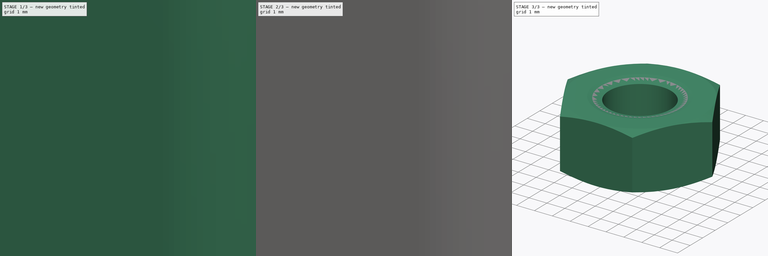
[diagram: build sequence overview — one tinted view per stage of 3, left to right]
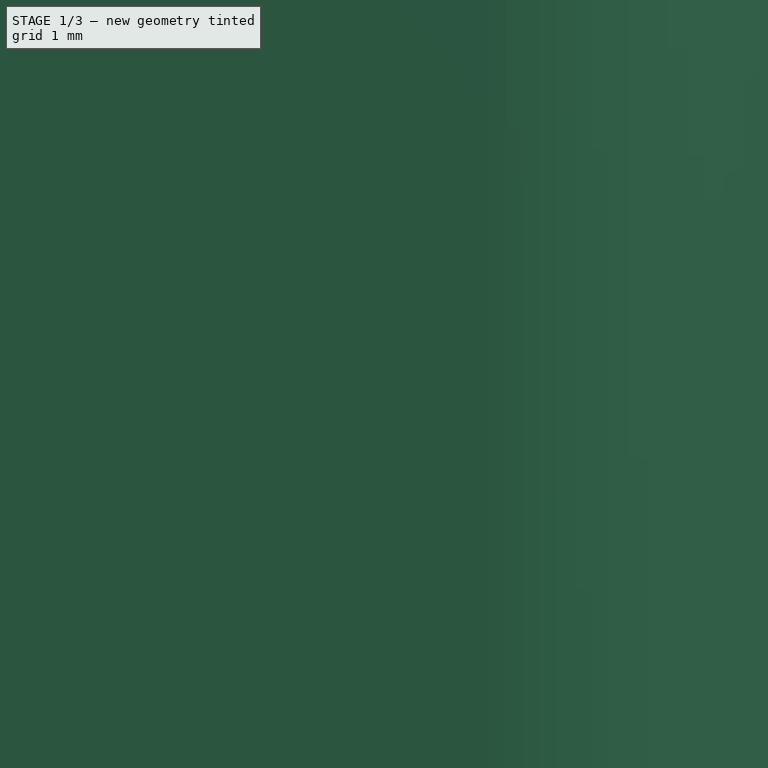
[diagram: stage 1 of 3 — iso view after this stage's code; geometry added in this stage tinted green]
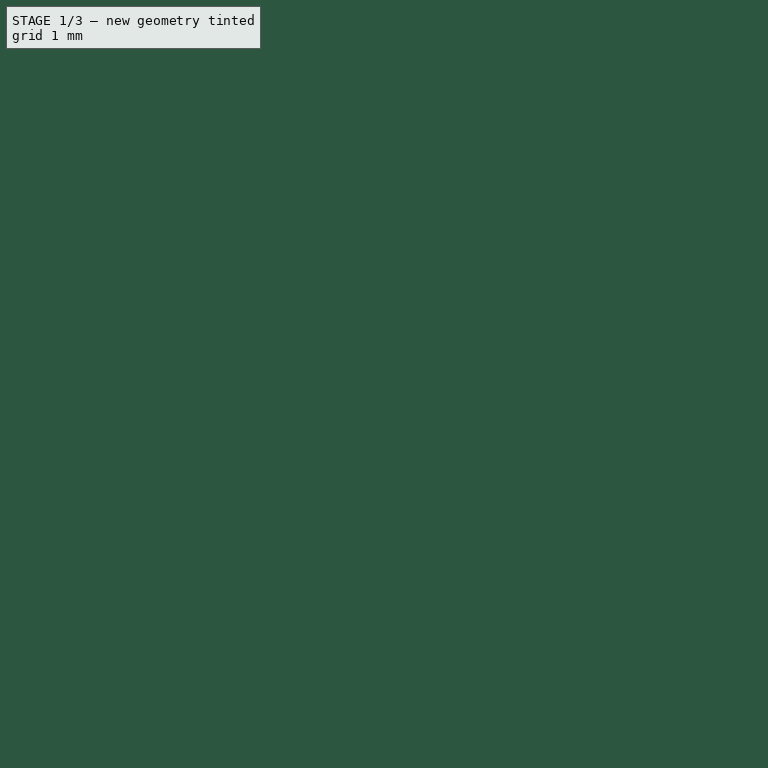
[diagram: stage 1 of 3 — front view after this stage's code; geometry added in this stage tinted green]
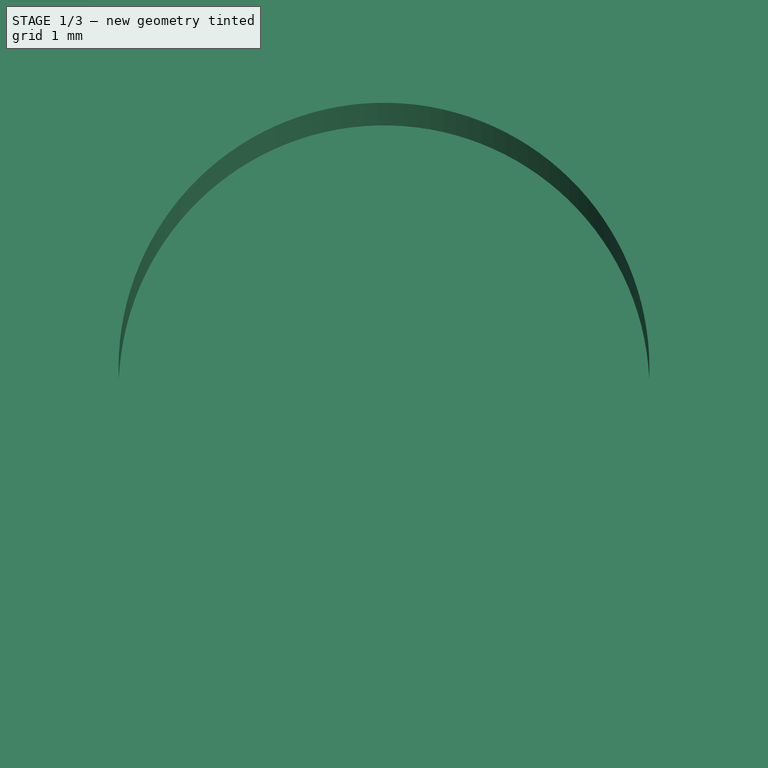
[diagram: stage 1 of 3 — top view after this stage's code; geometry added in this stage tinted green]
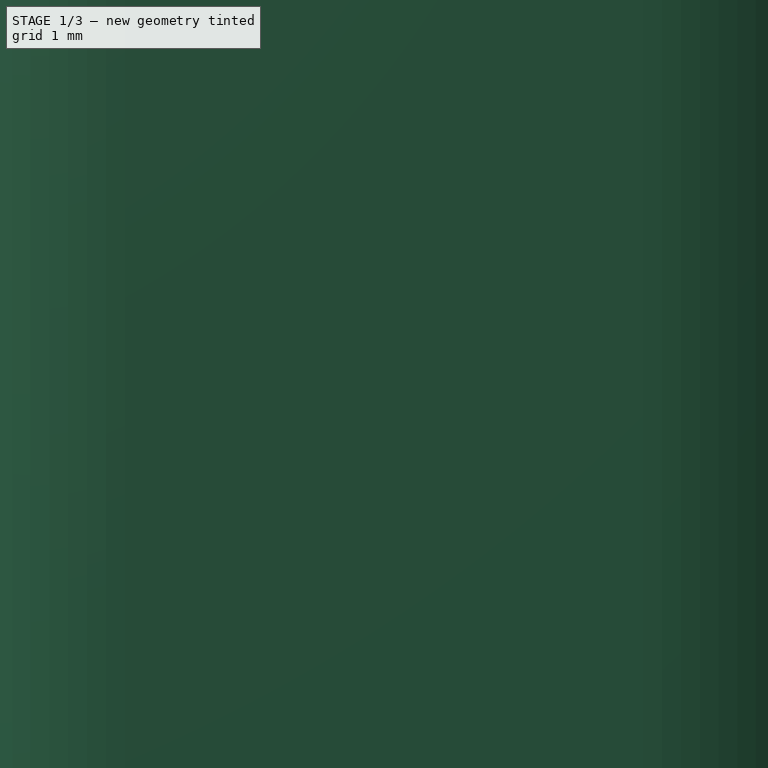
[diagram: stage 1 of 3 — right view after this stage's code; geometry added in this stage tinted green]
FCSTD DOCUMENT  (FreeCAD 1.0R39285 (Git))
Label: harmonograph_paper_holder
License: All rights reserved
LicenseURL: http://www.ohwr.org/attachments/2388/cern_ohl_v_1_2.txt
objects: Sketcher::SketchObject×5, PartDesign::Pocket×3, PartDesign::Pad×2, Part::FeaturePython×2, PartDesign::Mirrored×2, PartDesign::SubShapeBinder×1, PartDesign::MultiTransform×1, PartDesign::Body×1
note: 35 computed .brp shape members not serialized (recipe doc carries the construction recipe); baked Part::Feature solids carry a one-line shape summary decoded from their .brp

FEATURE [Sketcher::SketchObject] Sketch
  ArcFitTolerance = 1e-06
  AttachmentSupport = -> [XY_Plane]
  FullyConstrained = true
  MakeInternals = false
  MapMode = 5
  sketch-geometry (15):
    g0: LineSegment StartX=-25 StartY=14 StartZ=0 EndX=-25 EndY=-14 EndZ=0
    g1: LineSegment StartX=-19 StartY=-20 StartZ=0 EndX=19 EndY=-20 EndZ=0
    g2: LineSegment StartX=25 StartY=-14 StartZ=0 EndX=25 EndY=14 EndZ=0
    g3: LineSegment StartX=19 StartY=20 StartZ=0 EndX=-19 EndY=20 EndZ=0
    g4: ArcOfCircle CenterX=-19 CenterY=14 CenterZ=0 NormalX=0 NormalY=0 NormalZ=1 AngleXU=0 Radius=6 StartAngle=1.5708 EndAngle=3.14159
    g5: ArcOfCircle CenterX=-19 CenterY=-14 CenterZ=0 NormalX=0 NormalY=0 NormalZ=1 AngleXU=0 Radius=6 StartAngle=3.14159 EndAngle=4.71239
    g6: ArcOfCircle CenterX=19 CenterY=-14 CenterZ=0 NormalX=0 NormalY=0 NormalZ=1 AngleXU=0 Radius=6 StartAngle=4.71239 EndAngle=6.28319
    g7: ArcOfCircle CenterX=19 CenterY=14 CenterZ=0 NormalX=0 NormalY=0 NormalZ=1 AngleXU=0 Radius=6 StartAngle=0 EndAngle=1.5708
    g8: GeomPoint [constr] X=-25 Y=20 Z=0
    g9: GeomPoint [constr] X=25 Y=-20 Z=0
    g10: Circle CenterX=-19 CenterY=14 CenterZ=0 NormalX=0 NormalY=0 NormalZ=1 AngleXU=0 Radius=2.1
    g11: Circle CenterX=19 CenterY=14 CenterZ=0 NormalX=0 NormalY=0 NormalZ=1 AngleXU=0 Radius=2.1
    g12: Circle CenterX=19 CenterY=-14 CenterZ=0 NormalX=0 NormalY=0 NormalZ=1 AngleXU=0 Radius=2.1
    g13: Circle CenterX=-19 CenterY=-14 CenterZ=0 NormalX=0 NormalY=0 NormalZ=1 AngleXU=0 Radius=2.1
    g14: Circle [constr] CenterX=-19 CenterY=14 CenterZ=0 NormalX=0 NormalY=0 NormalZ=1 AngleXU=0 Radius=4
  constraints (33):
    c: Tangent(g0,g4) = -1.5708
    c: Tangent(g0,g5) = -1.5708
    c: Tangent(g1,g5) = -1.5708
    c: Tangent(g1,g6) = -1.5708
    c: Tangent(g2,g6) = -1.5708
    c: Tangent(g2,g7) = -1.5708
    c: Tangent(g3,g7) = -1.5708
    c: Tangent(g3,g4) = -1.5708
    c: Vertical(g0)
    c: Vertical(g2)
    c: Horizontal(g1)
    c: Horizontal(g3)
    c: Equal(g4,g5)
    c: Equal(g5,g6)
    c: Equal(g6,g7)
    c: PointOnObject(g8,g0)
    c: PointOnObject(g8,g3)
    c: PointOnObject(g9,g1)
    c: PointOnObject(g9,g2)
    c: Distance(g0,g2) = 50
    c: Distance(g1,g3) = 40
    c: Radius(g5) = 6
    c: Symmetric(g4,g6,g-1)
    c: Diameter(g10) = 4.2
    c: Symmetric(g10,g13,g-1)
    c: Symmetric(g13,g12,g-2)
    c: Symmetric(g12,g11,g-1)
    c: Equal(g10,g13)
    c: Equal(g13,g12)
    c: Equal(g12,g11)
    c: Diameter(g14) = 8
    c: Coincident(g14,g10)
    c: Coincident(g4,g10)
FEATURE [PartDesign::Pad] Pad
  Direction = (0,0,1)
  Length = 8
  Length2 = 10
  Profile = -> Sketch
  ReferenceAxis = -> Sketch [N_Axis]
  Refine = true
  Suppressed = false
  Type = 0
FEATURE [Sketcher::SketchObject] Sketch001
  ArcFitTolerance = 1e-06
  AttachmentSupport = -> [Pad]
  FullyConstrained = true
  MakeInternals = false
  MapMode = 5
  Placement = pos=(0,0,8) rot=(0,0,1;0rad)
  sketch-geometry (11):
    g0: Circle CenterX=0 CenterY=0 CenterZ=0 NormalX=0 NormalY=0 NormalZ=1 AngleXU=0 Radius=4.1
    g1: LineSegment StartX=-15 StartY=4 StartZ=0 EndX=-15 EndY=-4 EndZ=0
    g2: LineSegment StartX=-9 StartY=-10 StartZ=0 EndX=9 EndY=-10 EndZ=0
    g3: LineSegment StartX=15 StartY=-4 StartZ=0 EndX=15 EndY=4 EndZ=0
    g4: LineSegment StartX=9 StartY=10 StartZ=0 EndX=-9 EndY=10 EndZ=0
    g5: ArcOfCircle CenterX=-9 CenterY=4 CenterZ=0 NormalX=0 NormalY=0 NormalZ=1 AngleXU=0 Radius=6 StartAngle=1.5708 EndAngle=3.14159
    g6: ArcOfCircle CenterX=-9 CenterY=-4 CenterZ=0 NormalX=0 NormalY=0 NormalZ=1 AngleXU=0 Radius=6 StartAngle=3.14159 EndAngle=4.71239
    g7: ArcOfCircle CenterX=9 CenterY=-4 CenterZ=0 NormalX=0 NormalY=0 NormalZ=1 AngleXU=0 Radius=6 StartAngle=4.71239 EndAngle=6.28319
    g8: ArcOfCircle CenterX=9 CenterY=4 CenterZ=0 NormalX=0 NormalY=0 NormalZ=1 AngleXU=0 Radius=6 StartAngle=0 EndAngle=1.5708
    g9: GeomPoint [constr] X=-15 Y=10 Z=0
    g10: GeomPoint [constr] X=15 Y=-10 Z=0
  constraints (25):
    c: Diameter(g0) = 8.2
    c: Coincident(g0,g-1)
    c: Tangent(g1,g5) = -1.5708
    c: Tangent(g1,g6) = -1.5708
    c: Tangent(g2,g6) = -1.5708
    c: Tangent(g2,g7) = -1.5708
    c: Tangent(g3,g7) = -1.5708
    c: Tangent(g3,g8) = -1.5708
    c: Tangent(g4,g8) = -1.5708
    c: Tangent(g4,g5) = -1.5708
    c: Vertical(g1)
    c: Vertical(g3)
    c: Horizontal(g2)
    c: Horizontal(g4)
    c: Equal(g5,g6)
    c: Equal(g6,g7)
    c: Equal(g7,g8)
    c: PointOnObject(g9,g1)
    c: PointOnObject(g9,g4)
    c: PointOnObject(g10,g2)
    c: PointOnObject(g10,g3)
    c: Distance(g1,g3) = 30
    c: Distance(g2,g4) = 20
    c: Radius(g6) = 6
    c: Symmetric(g5,g7,g0)
FEATURE [PartDesign::Pad] Pad001
  BaseFeature = -> Pad
  Direction = (0,0,1)
  Length = 20
  Length2 = 10
  Profile = -> Sketch001
  ReferenceAxis = -> Sketch001 [N_Axis]
  Refine = true
  Suppressed = false
  Type = 0
FEATURE [Part::FeaturePython] Nut  label="M4-Nut"  # WARN: FeaturePython — macro-defined, semantics opaque (R4)
  Diameter = 6
  Invert = false
  LeftHanded = false
  MatchOuter = false
  OffsetAngle = 0
  Placement = pos=(-8,0,17.3) rot=(0,1,0;4.71239rad)
  Thread = false
  Type = 31
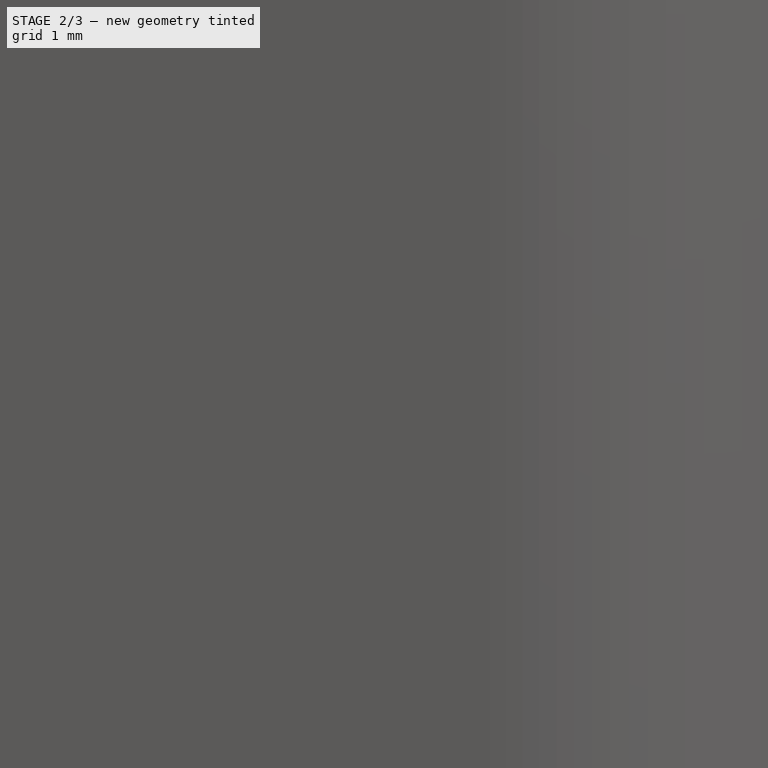
[diagram: stage 2 of 3 — iso view after this stage's code; geometry added in this stage tinted green]
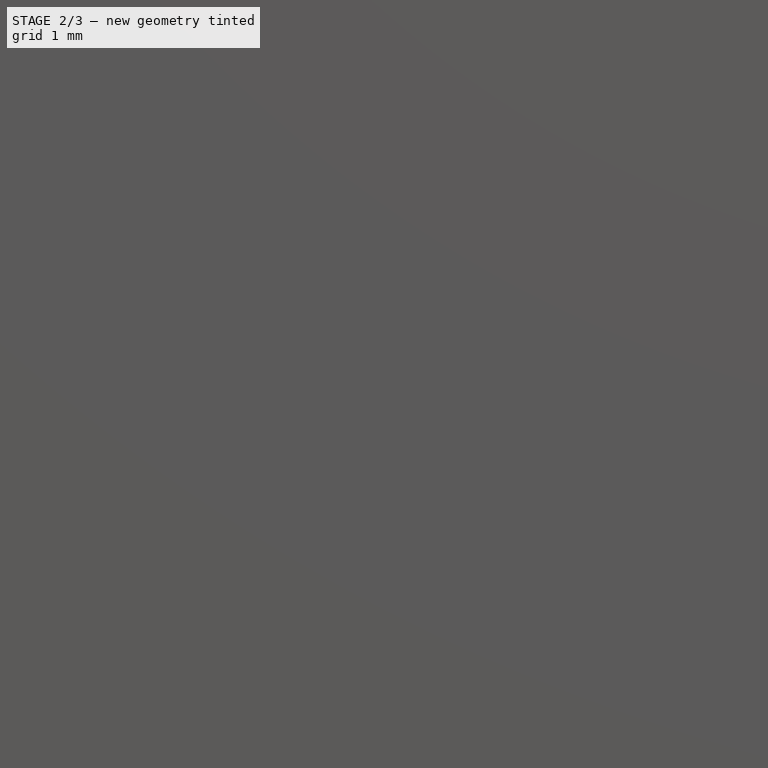
[diagram: stage 2 of 3 — front view after this stage's code; geometry added in this stage tinted green]
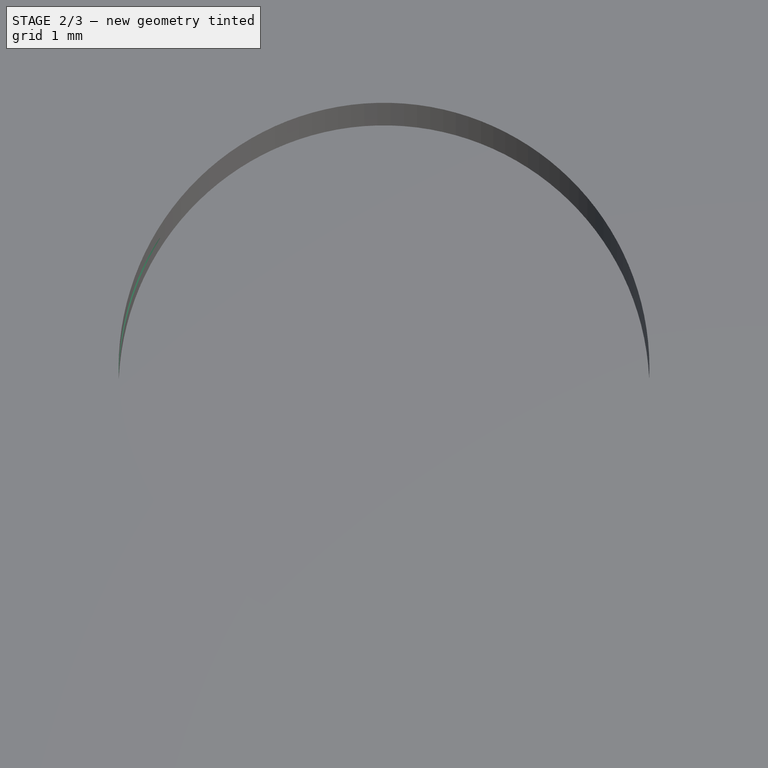
[diagram: stage 2 of 3 — top view after this stage's code; geometry added in this stage tinted green]
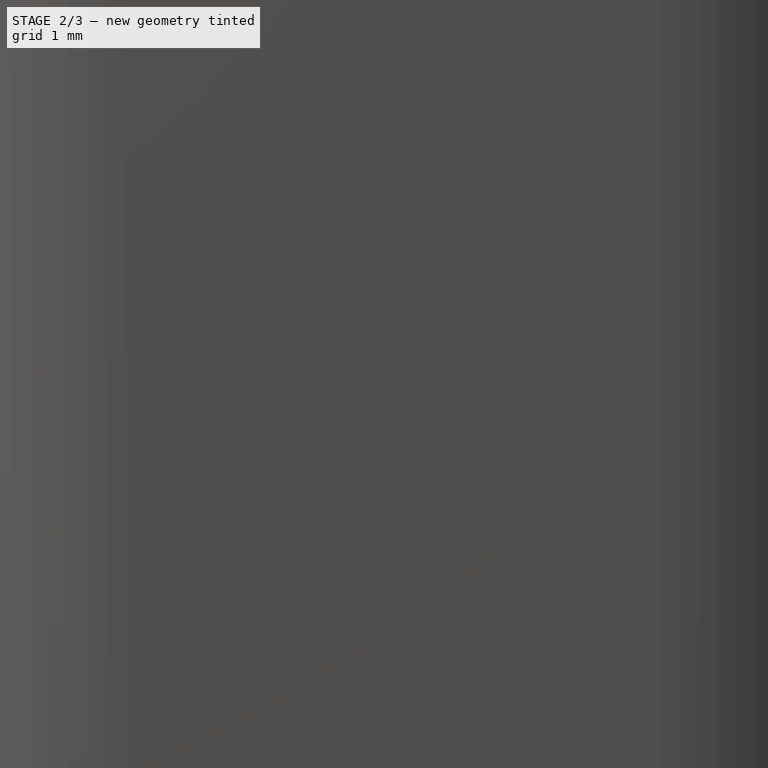
[diagram: stage 2 of 3 — right view after this stage's code; geometry added in this stage tinted green]
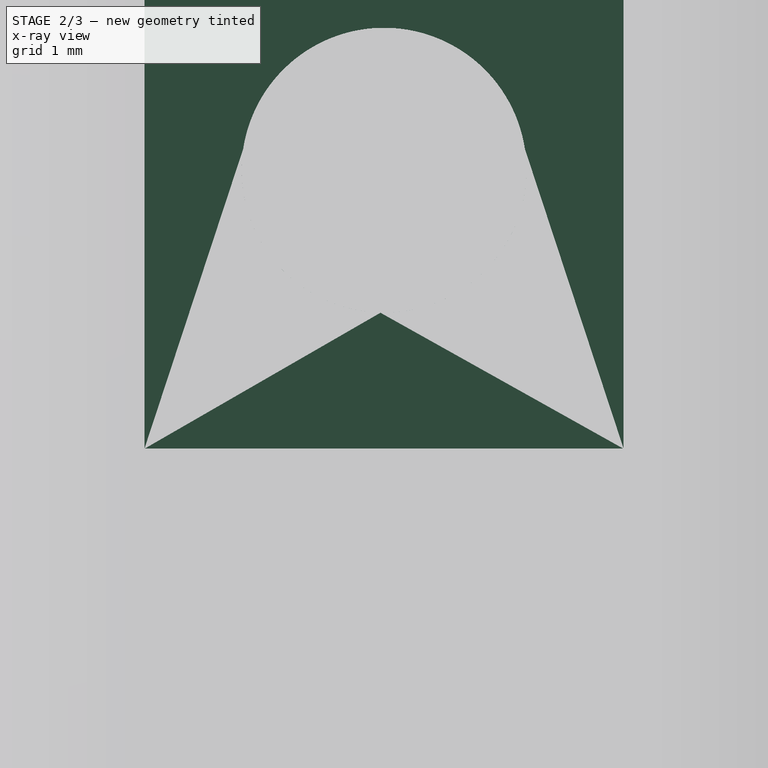
[diagram: stage 2 of 3 — x-ray composite at the right view; earlier geometry ghosted, this stage's added geometry solid]
FEATURE [Sketcher::SketchObject] Sketch002
  ArcFitTolerance = 1e-06
  AttachmentSupport = -> [Pad001]
  ExternalGeometry = -> [Pad001]
  FullyConstrained = true
  MakeInternals = false
  MapMode = 5
  Placement = pos=(0,0,28) rot=(0,0,1;0rad)
  sketch-geometry (7):
    g0: LineSegment StartX=-11.2 StartY=3.7 StartZ=0 EndX=-11.2 EndY=-3.7 EndZ=0
    g1: LineSegment StartX=-11.2 StartY=-3.7 StartZ=0 EndX=-7.9 EndY=-3.7 EndZ=0
    g2: LineSegment StartX=-7.9 StartY=-3.7 StartZ=0 EndX=-7.9 EndY=3.7 EndZ=0
    g3: LineSegment StartX=-7.9 StartY=3.7 StartZ=0 EndX=-11.2 EndY=3.7 EndZ=0
    g4: LineSegment [constr] StartX=-9.55 StartY=3.7 StartZ=0 EndX=-9.55 EndY=-3.7 EndZ=0
    g5: LineSegment [constr] StartX=-4.1 StartY=-2.87e-14 StartZ=0 EndX=-9.55 EndY=-2.87e-14 EndZ=0
    g6: LineSegment [constr] StartX=-9.55 StartY=-2.87e-14 StartZ=0 EndX=-15 EndY=-2.87e-14 EndZ=0
  constraints (19):
    c: Coincident(g0,g1)
    c: Coincident(g1,g2)
    c: Coincident(g2,g3)
    c: Coincident(g3,g0)
    c: Vertical(g0)
    c: Vertical(g2)
    c: Horizontal(g1)
    c: DistanceX(g3,g3) = 3.3
    c: DistanceY(g2,g2) = 7.4
    c: Horizontal(g3)
    c: Symmetric(g3,g3,g4)
    c: Symmetric(g1,g1,g4)
    c: PointOnObject(g5,g-3)
    c: Coincident(g6,g5)
    c: Symmetric(g-4,g-4,g6)
    c: Horizontal(g6)
    c: Equal(g6,g5)
    c: Symmetric(g4,g4,g5)
    c: Horizontal(g5)
FEATURE [PartDesign::Pocket] Pocket
  BaseFeature = -> Pad001
  Direction = (0,0,-1)
  Length = 15
  Length2 = 5
  Profile = -> Sketch002
  ReferenceAxis = -> Sketch002 [N_Axis]
  Refine = true
  Suppressed = false
  Type = 0
FEATURE [PartDesign::SubShapeBinder] Binder
  BindCopyOnChange = 0
  BindMode = 0
  ClaimChildren = false
  Context = -> Body [Binder.]
  Fuse = false
  MakeFace = true
  OffsetFill = false
  OffsetIntersection = false
  OffsetJoinType = 0
  OffsetOpenResult = false
  PartialLoad = false
  Refine = true
  Relative = true
  Support = -> [Nut]
  _Version = 2
FEATURE [Sketcher::SketchObject] Sketch003
  ArcFitTolerance = 1e-06
  AttachmentSupport = -> [Pocket]
  ExternalGeometry = -> [Binder]
  FullyConstrained = true
  MakeInternals = false
  MapMode = 5
  Placement = pos=(-15,0,0) rot=(0.57735,-0.57735,-0.57735;2.0944rad)
  sketch-geometry (1):
    g0: Circle CenterX=0 CenterY=17.3 CenterZ=0 NormalX=0 NormalY=0 NormalZ=1 AngleXU=0 Radius=2.2
  constraints (2):
    c: Diameter(g0) = 4.4
    c: Coincident(g0,g-3)
FEATURE [PartDesign::Pocket] Pocket001
  BaseFeature = -> Pocket
  Direction = (1,0,0)
  Length = 0
  Length2 = 5
  Profile = -> Sketch003
  ReferenceAxis = -> Sketch003 [N_Axis]
  Refine = true
  Suppressed = false
  Type = 3
  UpToFace = -> Pocket [Face28]
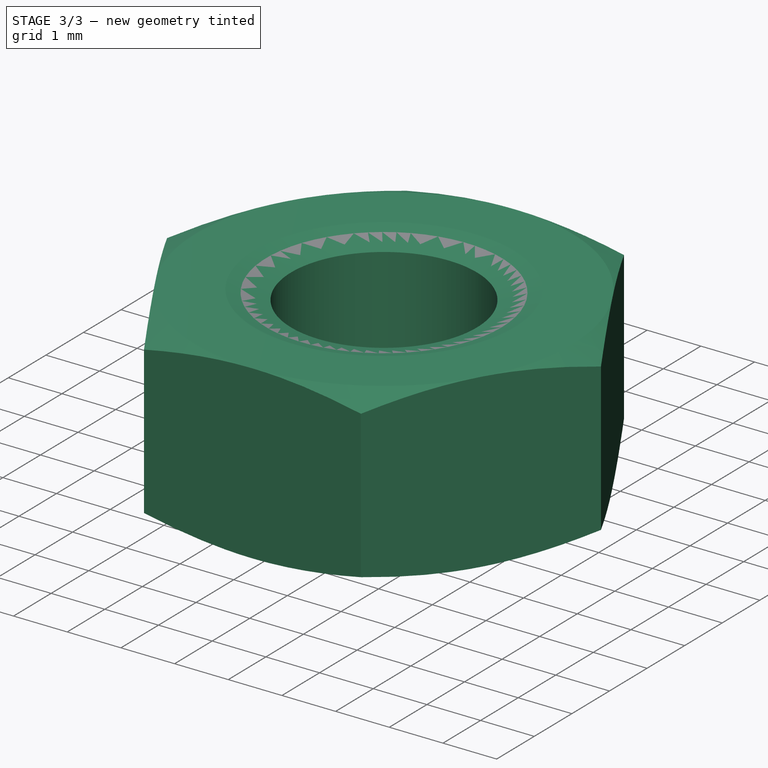
[diagram: stage 3 of 3 — iso view after this stage's code; geometry added in this stage tinted green]
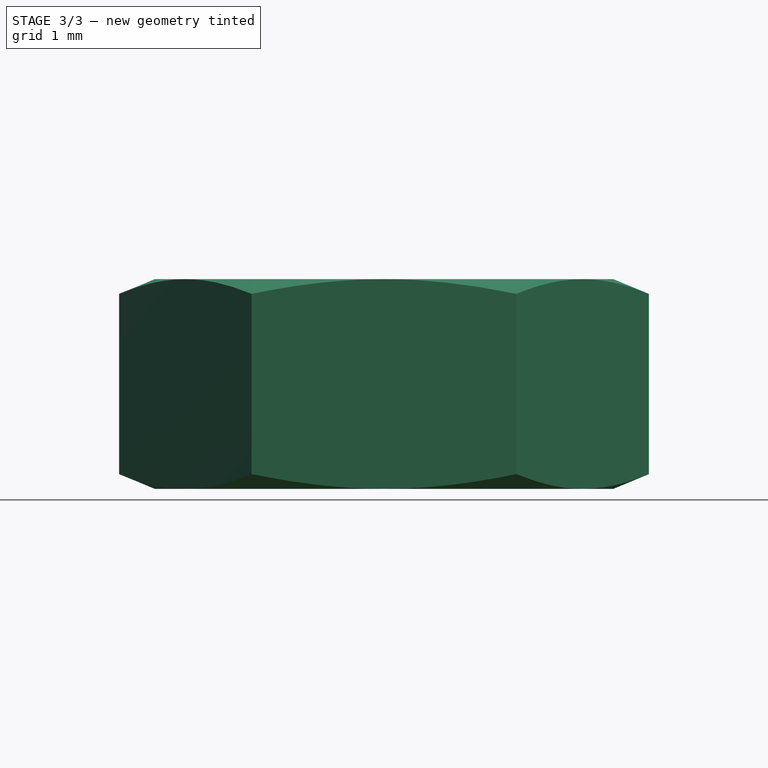
[diagram: stage 3 of 3 — front view after this stage's code; geometry added in this stage tinted green]
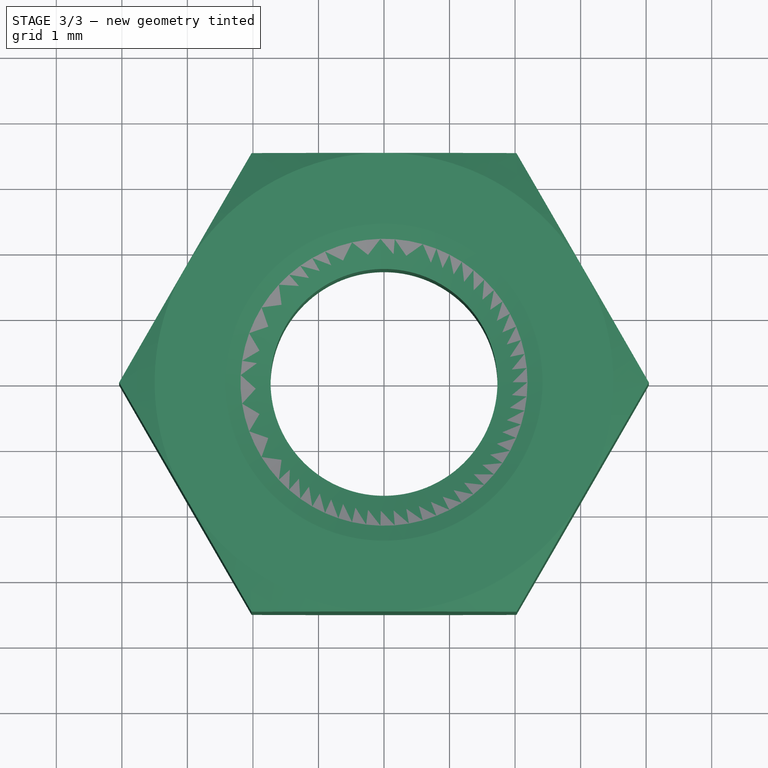
[diagram: stage 3 of 3 — top view after this stage's code; geometry added in this stage tinted green]
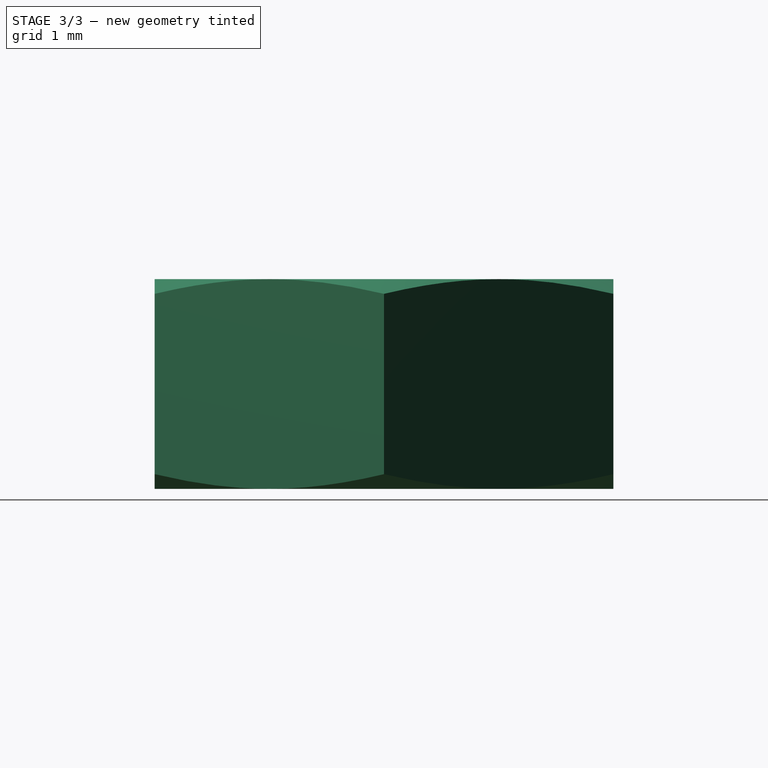
[diagram: stage 3 of 3 — right view after this stage's code; geometry added in this stage tinted green]
FEATURE [Part::FeaturePython] Nut001  label="M4-Nut001"  # WARN: FeaturePython — macro-defined, semantics opaque (R4)
  BaseObject = -> Body [Pocket001.Edge35]
  Diameter = 6
  Invert = false
  LeftHanded = false
  MatchOuter = false
  Offset = -3.5
  OffsetAngle = 0
  Placement = pos=(-19,14,4.5) rot=(0,0,1;0rad)
  Thread = false
  Type = 31
FEATURE [Sketcher::SketchObject] Sketch004
  ArcFitTolerance = 1e-06
  AttachmentSupport = -> [Pocket001]
  ExternalGeometry = -> [Pocket001]
  FullyConstrained = true
  MakeInternals = false
  MapMode = 5
  Placement = pos=(0,0,8) rot=(0,0,1;0rad)
  sketch-geometry (7):
    g0: LineSegment StartX=-14.7 StartY=14 StartZ=0 EndX=-16.85 EndY=17.7239 EndZ=0
    g1: LineSegment StartX=-16.85 StartY=17.7239 StartZ=0 EndX=-21.15 EndY=17.7239 EndZ=0
    g2: LineSegment StartX=-21.15 StartY=17.7239 StartZ=0 EndX=-23.3 EndY=14 EndZ=0
    g3: LineSegment StartX=-23.3 StartY=14 StartZ=0 EndX=-21.15 EndY=10.2761 EndZ=0
    g4: LineSegment StartX=-21.15 StartY=10.2761 StartZ=0 EndX=-16.85 EndY=10.2761 EndZ=0
    g5: LineSegment StartX=-16.85 StartY=10.2761 StartZ=0 EndX=-14.7 EndY=14 EndZ=0
    g6: Circle [constr] CenterX=-19 CenterY=14 CenterZ=0 NormalX=0 NormalY=0 NormalZ=1 AngleXU=0 Radius=4.3
  constraints (16):
    c: Coincident(g0,g1)
    c: Coincident(g1,g2)
    c: Coincident(g2,g3)
    c: Coincident(g3,g4)
    c: Coincident(g4,g5)
    c: Coincident(g5,g0)
    c: Equal(g0, g1-g5) x5
    c: PointOnObject(g0,g6)
    c: PointOnObject(g1,g6)
    c: PointOnObject(g2,g6)
    c: PointOnObject(g3,g6)
    c: PointOnObject(g4,g6)
    c: PointOnObject(g5,g6)
    c: Radius(g6) = 4.3
    c: Coincident(g6,g-3)
    c: Horizontal(g1)
FEATURE [PartDesign::Pocket] Pocket002
  BaseFeature = -> Pocket001
  Direction = (0,0,-1)
  Length = 4
  Length2 = 5
  Profile = -> Sketch004
  ReferenceAxis = -> Sketch004 [N_Axis]
  Refine = true
  Suppressed = false
  Type = 0
FEATURE [PartDesign::Mirrored] Mirrored
  MirrorPlane = -> YZ_Plane
  Refine = true
  Suppressed = false
  TransformMode = 0
FEATURE [PartDesign::Mirrored] Mirrored001
  MirrorPlane = -> XZ_Plane
  Refine = true
  Suppressed = false
  TransformMode = 0
FEATURE [PartDesign::MultiTransform] MultiTransform
  BaseFeature = -> Pocket002
  Originals = -> [Pocket002]
  Refine = true
  Suppressed = false
  TransformMode = 0
  Transformations = -> [Mirrored,Mirrored001]
FEATURE [PartDesign::Body] Body
  AllowCompound = false
  Group = -> [Sketch,Pad,Sketch001,Pad001,Sketch002,Pocket,Binder,Sketch003,Pocket001,Sketch004,Pocket002,MultiTransform,Mirrored,Mirrored001]
  Origin = -> Origin
  Tip = -> MultiTransform
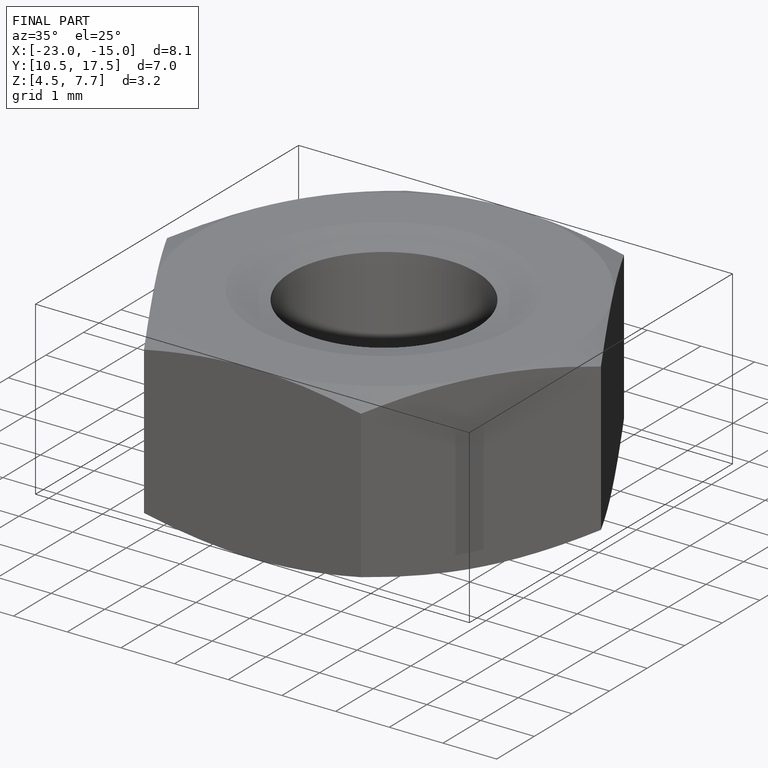
[diagram: finished part — iso view with bounding-box wireframe]
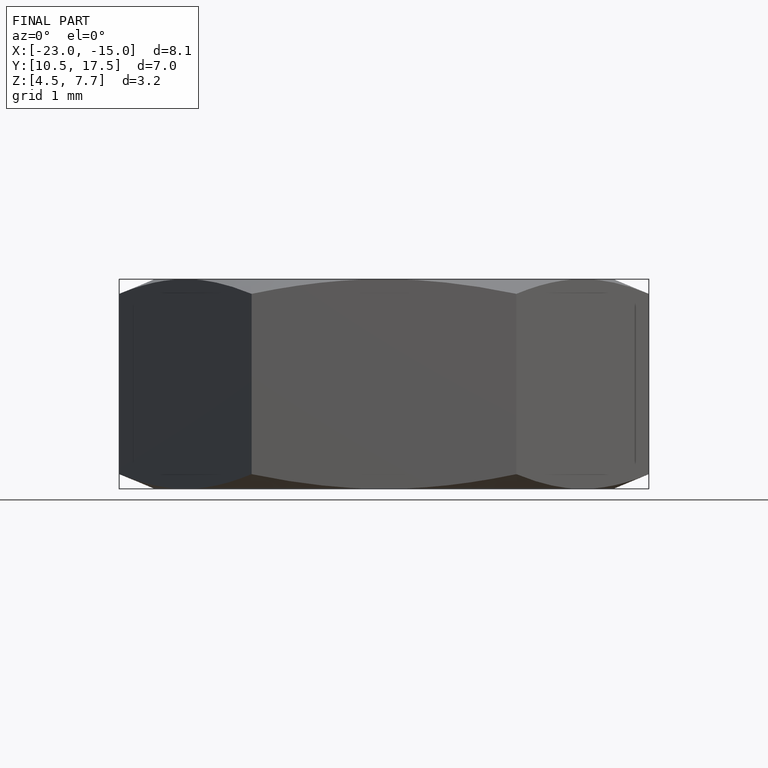
[diagram: finished part — front view with bounding-box wireframe]
